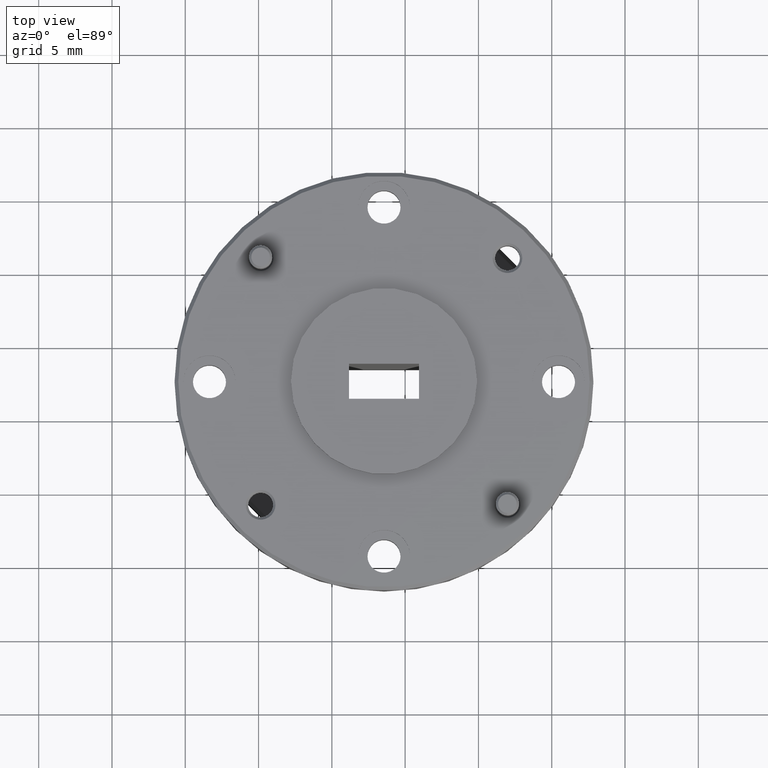
[diagram: clean part render]
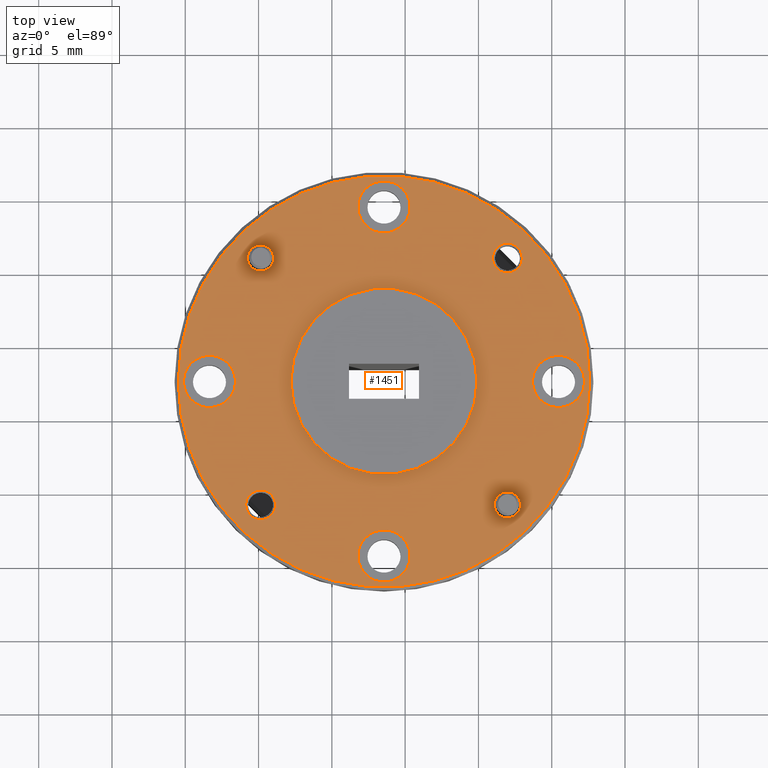
[diagram: same view with one face highlighted and labeled with its STEP entity id]
A machine part, top view. The second image highlights one B-rep face of the part: STEP entity #1451.
In plain terms, the highlighted planar face has unit normal (0, 0, 1).
Its self-contained STEP definition (entity closure, byte-faithful):
#1 = CARTESIAN_POINT ( 'NONE',  ( -3.502852145285537700, 1.013250781779214000, 1.698770279066536200 ) ) ;
#27 = DIRECTION ( 'NONE',  ( 1.000000000000000000, 0.0000000000000000000, 0.0000000000000000000 ) ) ;
#57 = ORIENTED_EDGE ( 'NONE', *, *, #2390, .T. ) ;
#58 = AXIS2_PLACEMENT_3D ( 'NONE', #2753, #1058, #1322 ) ;
#93 = CIRCLE ( 'NONE', #2700, 0.04000000000009081700 ) ;
#97 = CARTESIAN_POINT ( 'NONE',  ( -3.206395841607356400, 0.6817944780980216300, 1.698770279067069600 ) ) ;
#142 = DIRECTION ( 'NONE',  ( 1.000000000000000000, 0.0000000000000000000, 0.0000000000000000000 ) ) ;
#166 = AXIS2_PLACEMENT_3D ( 'NONE', #2155, #3114, #1887 ) ;
#174 = EDGE_LOOP ( 'NONE', ( #1147, #1499 ) ) ;
#199 = EDGE_CURVE ( 'NONE', #3122, #2184, #3099, .T. ) ;
#205 = AXIS2_PLACEMENT_3D ( 'NONE', #3184, #1218, #222 ) ;
#209 = AXIS2_PLACEMENT_3D ( 'NONE', #350, #2111, #2346 ) ;
#222 = DIRECTION ( 'NONE',  ( 1.000000000000000000, 0.0000000000000000000, 0.0000000000000000000 ) ) ;
#227 = CIRCLE ( 'NONE', #1567, 0.03499999999928702500 ) ;
#239 = DIRECTION ( 'NONE',  ( -0.0000000000000000000, 0.0000000000000000000, -1.000000000000000000 ) ) ;
#242 = DIRECTION ( 'NONE',  ( -0.0000000000000000000, 0.0000000000000000000, -1.000000000000000000 ) ) ;
#246 = VERTEX_POINT ( 'NONE', #1 ) ;
#272 = AXIS2_PLACEMENT_3D ( 'NONE', #2463, #242, #2947 ) ;
#273 = EDGE_CURVE ( 'NONE', #672, #2414, #227, .T. ) ;
#285 = DIRECTION ( 'NONE',  ( -0.0000000000000000000, -0.0000000000000000000, -1.000000000000000000 ) ) ;
#322 = CARTESIAN_POINT ( 'NONE',  ( -2.956395841607356400, 0.6817944780980216300, 1.698770279067069600 ) ) ;
#347 = CARTESIAN_POINT ( 'NONE',  ( -2.653895841607354800, 0.6817944780980216300, 1.698770279067069600 ) ) ;
#350 = CARTESIAN_POINT ( 'NONE',  ( -3.206395841607356400, 0.2130444780980215700, 1.698770279067069600 ) ) ;
#391 = CARTESIAN_POINT ( 'NONE',  ( -2.874939537926160400, 1.013250781779214000, 1.698770279066536200 ) ) ;
#458 = EDGE_CURVE ( 'NONE', #1118, #246, #2633, .T. ) ;
#465 = CARTESIAN_POINT ( 'NONE',  ( -3.206395841607356400, 1.150544478098021600, 1.698770279067069600 ) ) ;
#512 = AXIS2_PLACEMENT_3D ( 'NONE', #1527, #1301, #3029 ) ;
#535 = DIRECTION ( 'NONE',  ( 1.000000000000000000, 0.0000000000000000000, 0.0000000000000000000 ) ) ;
#554 = AXIS2_PLACEMENT_3D ( 'NONE', #3217, #1251, #2980 ) ;
#579 = FACE_BOUND ( 'NONE', #839, .T. ) ;
#625 = EDGE_CURVE ( 'NONE', #689, #2294, #1830, .T. ) ;
#638 = EDGE_LOOP ( 'NONE', ( #3151, #1572 ) ) ;
#643 = AXIS2_PLACEMENT_3D ( 'NONE', #2589, #1362, #1390 ) ;
#644 = EDGE_CURVE ( 'NONE', #3188, #1890, #823, .T. ) ;
#646 = EDGE_CURVE ( 'NONE', #2414, #672, #698, .T. ) ;
#658 = EDGE_LOOP ( 'NONE', ( #2758, #3086 ) ) ;
#672 = VERTEX_POINT ( 'NONE', #1097 ) ;
#689 = VERTEX_POINT ( 'NONE', #3060 ) ;
#698 = CIRCLE ( 'NONE', #860, 0.03499999999928702500 ) ;
#709 = DIRECTION ( 'NONE',  ( -0.0000000000000000000, -0.0000000000000000000, -1.000000000000000000 ) ) ;
#713 = CARTESIAN_POINT ( 'NONE',  ( -3.675145841607356400, 0.6817944780980216300, 1.698770279067069600 ) ) ;
#729 = DIRECTION ( 'NONE',  ( -0.0000000000000000000, -0.0000000000000000000, -1.000000000000000000 ) ) ;
#767 = CARTESIAN_POINT ( 'NONE',  ( -3.537852145288552300, 0.3503381744168291800, 1.698770279068774200 ) ) ;
#776 = AXIS2_PLACEMENT_3D ( 'NONE', #1281, #2034, #535 ) ;
#815 = FACE_BOUND ( 'NONE', #2631, .T. ) ;
#816 = AXIS2_PLACEMENT_3D ( 'NONE', #97, #1098, #1868 ) ;
#819 = CIRCLE ( 'NONE', #776, 0.07000000000000007600 ) ;
#823 = CIRCLE ( 'NONE', #512, 0.2499999999999998100 ) ;
#830 = EDGE_CURVE ( 'NONE', #2294, #689, #1371, .T. ) ;
#838 = DIRECTION ( 'NONE',  ( 1.000000000000000000, 0.0000000000000000000, 0.0000000000000000000 ) ) ;
#839 = EDGE_LOOP ( 'NONE', ( #1974, #2464 ) ) ;
#844 = VERTEX_POINT ( 'NONE', #1243 ) ;
#860 = AXIS2_PLACEMENT_3D ( 'NONE', #2774, #1125, #2839 ) ;
#863 = CARTESIAN_POINT ( 'NONE',  ( -3.136395841607356100, 0.2130444780980215700, 1.698770279067069600 ) ) ;
#866 = CARTESIAN_POINT ( 'NONE',  ( -3.675145841607356400, 0.6817944780980216300, 1.698770279067069600 ) ) ;
#876 = EDGE_LOOP ( 'NONE', ( #2419, #1687 ) ) ;
#877 = EDGE_LOOP ( 'NONE', ( #2779, #2323 ) ) ;
#892 = FACE_BOUND ( 'NONE', #877, .T. ) ;
#954 = VERTEX_POINT ( 'NONE', #3010 ) ;
#955 = ORIENTED_EDGE ( 'NONE', *, *, #199, .T. ) ;
#965 = CARTESIAN_POINT ( 'NONE',  ( -3.745145841607356600, 0.6817944780980216300, 1.698770279067069600 ) ) ;
#973 = AXIS2_PLACEMENT_3D ( 'NONE', #2303, #285, #2795 ) ;
#990 = VERTEX_POINT ( 'NONE', #1059 ) ;
#1020 = AXIS2_PLACEMENT_3D ( 'NONE', #465, #709, #142 ) ;
#1046 = EDGE_CURVE ( 'NONE', #954, #2506, #819, .T. ) ;
#1050 = FACE_BOUND ( 'NONE', #174, .T. ) ;
#1058 = DIRECTION ( 'NONE',  ( -0.0000000000000000000, 0.0000000000000000000, -1.000000000000000000 ) ) ;
#1059 = CARTESIAN_POINT ( 'NONE',  ( -3.758895841607357500, 0.6817944780980216300, 1.698770279067069600 ) ) ;
#1084 = CIRCLE ( 'NONE', #205, 0.07000000000000007600 ) ;
#1097 = CARTESIAN_POINT ( 'NONE',  ( -2.839939537926873500, 0.3503381744168293500, 1.698770279066536200 ) ) ;
#1098 = DIRECTION ( 'NONE',  ( -0.0000000000000000000, -0.0000000000000000000, 1.000000000000000000 ) ) ;
#1109 = CARTESIAN_POINT ( 'NONE',  ( -3.572852145291566500, 1.013250781779214000, 1.698770279066536200 ) ) ;
#1118 = VERTEX_POINT ( 'NONE', #1109 ) ;
#1125 = DIRECTION ( 'NONE',  ( -0.0000000000000000000, 0.0000000000000000000, -1.000000000000000000 ) ) ;
#1147 = ORIENTED_EDGE ( 'NONE', *, *, #3034, .T. ) ;
#1148 = EDGE_CURVE ( 'NONE', #1714, #3198, #1558, .T. ) ;
#1150 = DIRECTION ( 'NONE',  ( 1.000000000000000000, 0.0000000000000000000, 0.0000000000000000000 ) ) ;
#1180 = PLANE ( 'NONE',  #1837 ) ;
#1194 = CIRCLE ( 'NONE', #166, 0.07000000000000007600 ) ;
#1218 = DIRECTION ( 'NONE',  ( -0.0000000000000000000, -0.0000000000000000000, -1.000000000000000000 ) ) ;
#1243 = CARTESIAN_POINT ( 'NONE',  ( -3.276395841607356200, 0.2130444780980215700, 1.698770279067069600 ) ) ;
#1251 = DIRECTION ( 'NONE',  ( -0.0000000000000000000, 0.0000000000000000000, -1.000000000000000000 ) ) ;
#1278 = CIRCLE ( 'NONE', #209, 0.07000000000000007600 ) ;
#1281 = CARTESIAN_POINT ( 'NONE',  ( -2.737645841607356400, 0.6817944780980216300, 1.698770279067069600 ) ) ;
#1301 = DIRECTION ( 'NONE',  ( -0.0000000000000000000, -0.0000000000000000000, -1.000000000000000000 ) ) ;
#1303 = CARTESIAN_POINT ( 'NONE',  ( -3.456395841607355900, 0.6817944780980216300, 1.698770279067069600 ) ) ;
#1312 = ORIENTED_EDGE ( 'NONE', *, *, #1997, .T. ) ;
#1315 = CIRCLE ( 'NONE', #554, 0.04000000000009081700 ) ;
#1318 = ORIENTED_EDGE ( 'NONE', *, *, #1649, .T. ) ;
#1322 = DIRECTION ( 'NONE',  ( 1.000000000000000000, 0.0000000000000000000, 0.0000000000000000000 ) ) ;
#1340 = AXIS2_PLACEMENT_3D ( 'NONE', #767, #2496, #27 ) ;
#1347 = EDGE_LOOP ( 'NONE', ( #2663, #2602 ) ) ;
#1362 = DIRECTION ( 'NONE',  ( -0.0000000000000000000, -0.0000000000000000000, -1.000000000000000000 ) ) ;
#1371 = CIRCLE ( 'NONE', #1340, 0.04000000000158022300 ) ;
#1390 = DIRECTION ( 'NONE',  ( -1.000000000000000000, 0.0000000000000000000, 0.0000000000000000000 ) ) ;
#1427 = DIRECTION ( 'NONE',  ( 0.0000000000000000000, 0.0000000000000000000, 1.000000000000000000 ) ) ;
#1451 = ADVANCED_FACE ( 'NONE', ( #1709, #2558, #2370, #1050, #579, #1475, #1903, #815, #892, #1786 ), #1180, .T. ) ;
#1475 = FACE_BOUND ( 'NONE', #638, .T. ) ;
#1494 = VERTEX_POINT ( 'NONE', #1933 ) ;
#1499 = ORIENTED_EDGE ( 'NONE', *, *, #1148, .T. ) ;
#1527 = CARTESIAN_POINT ( 'NONE',  ( -3.206395841607356400, 0.6817944780980216300, 1.698770279067069600 ) ) ;
#1533 = CARTESIAN_POINT ( 'NONE',  ( -3.537852145288552300, 0.3503381744168291800, 1.698770279068774200 ) ) ;
#1558 = CIRCLE ( 'NONE', #1715, 0.07000000000000007600 ) ;
#1567 = AXIS2_PLACEMENT_3D ( 'NONE', #1721, #239, #2263 ) ;
#1572 = ORIENTED_EDGE ( 'NONE', *, *, #646, .T. ) ;
#1610 = DIRECTION ( 'NONE',  ( -0.0000000000000000000, -0.0000000000000000000, -1.000000000000000000 ) ) ;
#1632 = EDGE_CURVE ( 'NONE', #246, #1118, #2363, .T. ) ;
#1641 = CARTESIAN_POINT ( 'NONE',  ( -2.834939537926069300, 1.013250781779214000, 1.698770279066536200 ) ) ;
#1649 = EDGE_CURVE ( 'NONE', #1494, #2393, #1315, .T. ) ;
#1684 = DIRECTION ( 'NONE',  ( -1.000000000000000000, 0.0000000000000000000, 0.0000000000000000000 ) ) ;
#1687 = ORIENTED_EDGE ( 'NONE', *, *, #458, .T. ) ;
#1709 = FACE_BOUND ( 'NONE', #2694, .T. ) ;
#1714 = VERTEX_POINT ( 'NONE', #965 ) ;
#1715 = AXIS2_PLACEMENT_3D ( 'NONE', #866, #1610, #838 ) ;
#1721 = CARTESIAN_POINT ( 'NONE',  ( -2.874939537926160400, 0.3503381744168293500, 1.698770279066536200 ) ) ;
#1757 = CARTESIAN_POINT ( 'NONE',  ( -3.605145841607356500, 0.6817944780980216300, 1.698770279067069600 ) ) ;
#1786 = FACE_OUTER_BOUND ( 'NONE', #658, .T. ) ;
#1830 = CIRCLE ( 'NONE', #2448, 0.04000000000158022300 ) ;
#1837 = AXIS2_PLACEMENT_3D ( 'NONE', #2420, #1427, #2917 ) ;
#1868 = DIRECTION ( 'NONE',  ( -1.000000000000000000, 0.0000000000000000000, 0.0000000000000000000 ) ) ;
#1871 = ORIENTED_EDGE ( 'NONE', *, *, #2796, .T. ) ;
#1887 = DIRECTION ( 'NONE',  ( 1.000000000000000000, 0.0000000000000000000, 0.0000000000000000000 ) ) ;
#1890 = VERTEX_POINT ( 'NONE', #322 ) ;
#1895 = CARTESIAN_POINT ( 'NONE',  ( -3.206395841607356400, 0.6817944780980216300, 1.698770279067069600 ) ) ;
#1902 = DIRECTION ( 'NONE',  ( -0.0000000000000000000, 0.0000000000000000000, -1.000000000000000000 ) ) ;
#1903 = FACE_BOUND ( 'NONE', #876, .T. ) ;
#1933 = CARTESIAN_POINT ( 'NONE',  ( -2.914939537926251000, 1.013250781779214000, 1.698770279066536200 ) ) ;
#1974 = ORIENTED_EDGE ( 'NONE', *, *, #2265, .T. ) ;
#1997 = EDGE_CURVE ( 'NONE', #2184, #3122, #1194, .T. ) ;
#2021 = CIRCLE ( 'NONE', #2160, 0.5525000000000013200 ) ;
#2034 = DIRECTION ( 'NONE',  ( -0.0000000000000000000, -0.0000000000000000000, -1.000000000000000000 ) ) ;
#2088 = ORIENTED_EDGE ( 'NONE', *, *, #644, .T. ) ;
#2111 = DIRECTION ( 'NONE',  ( -0.0000000000000000000, -0.0000000000000000000, -1.000000000000000000 ) ) ;
#2126 = CARTESIAN_POINT ( 'NONE',  ( -3.136395841607356100, 1.150544478098021600, 1.698770279067069600 ) ) ;
#2155 = CARTESIAN_POINT ( 'NONE',  ( -3.206395841607356400, 1.150544478098021600, 1.698770279067069600 ) ) ;
#2160 = AXIS2_PLACEMENT_3D ( 'NONE', #1895, #2675, #1684 ) ;
#2170 = CARTESIAN_POINT ( 'NONE',  ( -3.577852145290132400, 0.3503381744168291800, 1.698770279068774200 ) ) ;
#2184 = VERTEX_POINT ( 'NONE', #2126 ) ;
#2188 = CIRCLE ( 'NONE', #2214, 0.07000000000000007600 ) ;
#2214 = AXIS2_PLACEMENT_3D ( 'NONE', #713, #729, #2690 ) ;
#2245 = VERTEX_POINT ( 'NONE', #863 ) ;
#2263 = DIRECTION ( 'NONE',  ( 1.000000000000000000, 0.0000000000000000000, 0.0000000000000000000 ) ) ;
#2265 = EDGE_CURVE ( 'NONE', #2245, #844, #1278, .T. ) ;
#2294 = VERTEX_POINT ( 'NONE', #2170 ) ;
#2303 = CARTESIAN_POINT ( 'NONE',  ( -3.206395841607356400, 0.2130444780980215700, 1.698770279067069600 ) ) ;
#2323 = ORIENTED_EDGE ( 'NONE', *, *, #830, .T. ) ;
#2346 = DIRECTION ( 'NONE',  ( 1.000000000000000000, 0.0000000000000000000, 0.0000000000000000000 ) ) ;
#2363 = CIRCLE ( 'NONE', #272, 0.03500000000301435600 ) ;
#2370 = FACE_BOUND ( 'NONE', #1347, .T. ) ;
#2390 = EDGE_CURVE ( 'NONE', #2393, #1494, #93, .T. ) ;
#2393 = VERTEX_POINT ( 'NONE', #1641 ) ;
#2414 = VERTEX_POINT ( 'NONE', #2462 ) ;
#2419 = ORIENTED_EDGE ( 'NONE', *, *, #1632, .T. ) ;
#2420 = CARTESIAN_POINT ( 'NONE',  ( -3.206395841607356400, 0.6817944780980216300, 1.698770279067069600 ) ) ;
#2448 = AXIS2_PLACEMENT_3D ( 'NONE', #1533, #2991, #3037 ) ;
#2462 = CARTESIAN_POINT ( 'NONE',  ( -2.909939537925447400, 0.3503381744168293500, 1.698770279066536200 ) ) ;
#2463 = CARTESIAN_POINT ( 'NONE',  ( -3.537852145288552300, 1.013250781779214000, 1.698770279066536200 ) ) ;
#2464 = ORIENTED_EDGE ( 'NONE', *, *, #3194, .T. ) ;
#2496 = DIRECTION ( 'NONE',  ( -0.0000000000000000000, 0.0000000000000000000, -1.000000000000000000 ) ) ;
#2506 = VERTEX_POINT ( 'NONE', #2960 ) ;
#2521 = EDGE_LOOP ( 'NONE', ( #1312, #955 ) ) ;
#2558 = FACE_BOUND ( 'NONE', #2521, .T. ) ;
#2589 = CARTESIAN_POINT ( 'NONE',  ( -3.206395841607356400, 0.6817944780980216300, 1.698770279067069600 ) ) ;
#2602 = ORIENTED_EDGE ( 'NONE', *, *, #1046, .T. ) ;
#2631 = EDGE_LOOP ( 'NONE', ( #57, #1318 ) ) ;
#2633 = CIRCLE ( 'NONE', #58, 0.03500000000301435600 ) ;
#2663 = ORIENTED_EDGE ( 'NONE', *, *, #3116, .T. ) ;
#2675 = DIRECTION ( 'NONE',  ( -0.0000000000000000000, -0.0000000000000000000, 1.000000000000000000 ) ) ;
#2690 = DIRECTION ( 'NONE',  ( 1.000000000000000000, 0.0000000000000000000, 0.0000000000000000000 ) ) ;
#2694 = EDGE_LOOP ( 'NONE', ( #2088, #1871 ) ) ;
#2700 = AXIS2_PLACEMENT_3D ( 'NONE', #391, #1902, #1150 ) ;
#2733 = VERTEX_POINT ( 'NONE', #347 ) ;
#2753 = CARTESIAN_POINT ( 'NONE',  ( -3.537852145288552300, 1.013250781779214000, 1.698770279066536200 ) ) ;
#2758 = ORIENTED_EDGE ( 'NONE', *, *, #2970, .T. ) ;
#2774 = CARTESIAN_POINT ( 'NONE',  ( -2.874939537926160400, 0.3503381744168293500, 1.698770279066536200 ) ) ;
#2779 = ORIENTED_EDGE ( 'NONE', *, *, #625, .T. ) ;
#2795 = DIRECTION ( 'NONE',  ( 1.000000000000000000, 0.0000000000000000000, 0.0000000000000000000 ) ) ;
#2796 = EDGE_CURVE ( 'NONE', #1890, #3188, #2965, .T. ) ;
#2839 = DIRECTION ( 'NONE',  ( 1.000000000000000000, 0.0000000000000000000, 0.0000000000000000000 ) ) ;
#2869 = EDGE_CURVE ( 'NONE', #2733, #990, #2889, .T. ) ;
#2889 = CIRCLE ( 'NONE', #816, 0.5525000000000013200 ) ;
#2917 = DIRECTION ( 'NONE',  ( 1.000000000000000000, 0.0000000000000000000, -0.0000000000000000000 ) ) ;
#2947 = DIRECTION ( 'NONE',  ( 1.000000000000000000, 0.0000000000000000000, 0.0000000000000000000 ) ) ;
#2952 = CARTESIAN_POINT ( 'NONE',  ( -3.276395841607356200, 1.150544478098021600, 1.698770279067069600 ) ) ;
#2960 = CARTESIAN_POINT ( 'NONE',  ( -2.667645841607356500, 0.6817944780980216300, 1.698770279067069600 ) ) ;
#2965 = CIRCLE ( 'NONE', #643, 0.2499999999999998100 ) ;
#2970 = EDGE_CURVE ( 'NONE', #990, #2733, #2021, .T. ) ;
#2980 = DIRECTION ( 'NONE',  ( 1.000000000000000000, 0.0000000000000000000, 0.0000000000000000000 ) ) ;
#2991 = DIRECTION ( 'NONE',  ( -0.0000000000000000000, 0.0000000000000000000, -1.000000000000000000 ) ) ;
#3010 = CARTESIAN_POINT ( 'NONE',  ( -2.807645841607356600, 0.6817944780980216300, 1.698770279067069600 ) ) ;
#3029 = DIRECTION ( 'NONE',  ( -1.000000000000000000, 0.0000000000000000000, 0.0000000000000000000 ) ) ;
#3034 = EDGE_CURVE ( 'NONE', #3198, #1714, #2188, .T. ) ;
#3037 = DIRECTION ( 'NONE',  ( 1.000000000000000000, 0.0000000000000000000, 0.0000000000000000000 ) ) ;
#3060 = CARTESIAN_POINT ( 'NONE',  ( -3.497852145286971700, 0.3503381744168291800, 1.698770279068774200 ) ) ;
#3086 = ORIENTED_EDGE ( 'NONE', *, *, #2869, .T. ) ;
#3095 = CIRCLE ( 'NONE', #973, 0.07000000000000007600 ) ;
#3099 = CIRCLE ( 'NONE', #1020, 0.07000000000000007600 ) ;
#3114 = DIRECTION ( 'NONE',  ( -0.0000000000000000000, -0.0000000000000000000, -1.000000000000000000 ) ) ;
#3116 = EDGE_CURVE ( 'NONE', #2506, #954, #1084, .T. ) ;
#3122 = VERTEX_POINT ( 'NONE', #2952 ) ;
#3151 = ORIENTED_EDGE ( 'NONE', *, *, #273, .T. ) ;
#3184 = CARTESIAN_POINT ( 'NONE',  ( -2.737645841607356400, 0.6817944780980216300, 1.698770279067069600 ) ) ;
#3188 = VERTEX_POINT ( 'NONE', #1303 ) ;
#3194 = EDGE_CURVE ( 'NONE', #844, #2245, #3095, .T. ) ;
#3198 = VERTEX_POINT ( 'NONE', #1757 ) ;
#3217 = CARTESIAN_POINT ( 'NONE',  ( -2.874939537926160400, 1.013250781779214000, 1.698770279066536200 ) ) ;